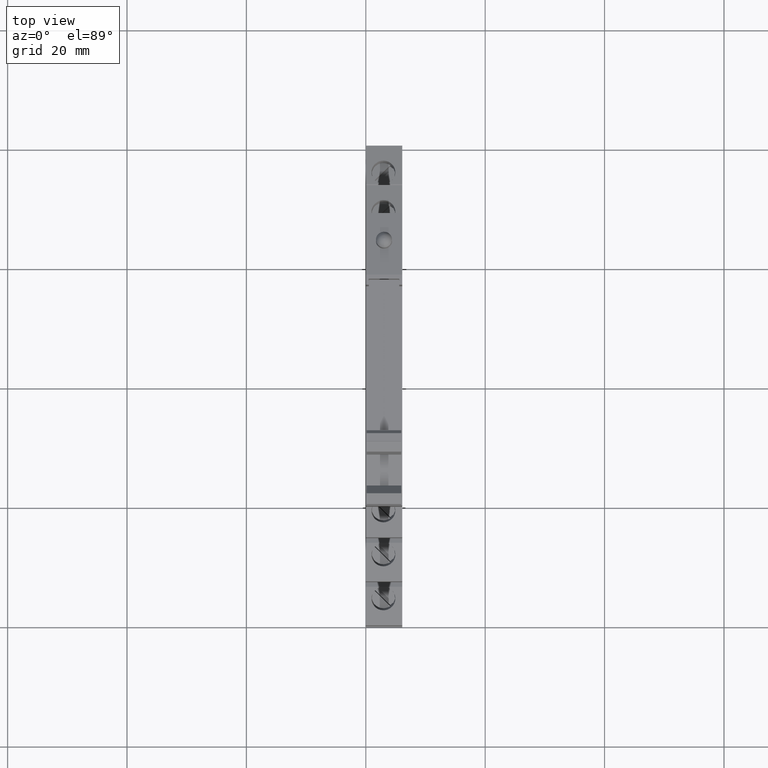
[diagram: clean part render]
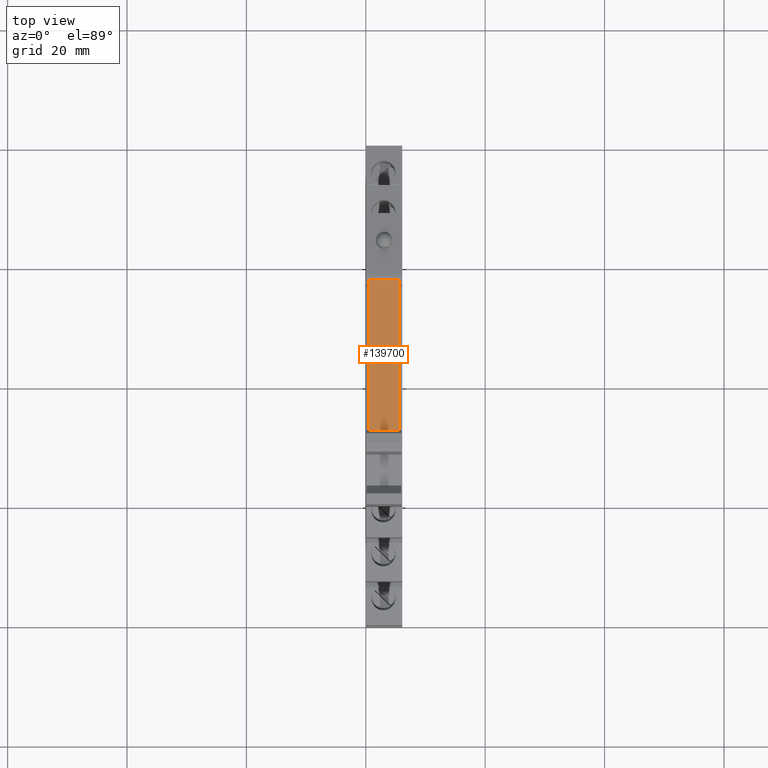
[diagram: same view with one face highlighted and labeled with its STEP entity id]
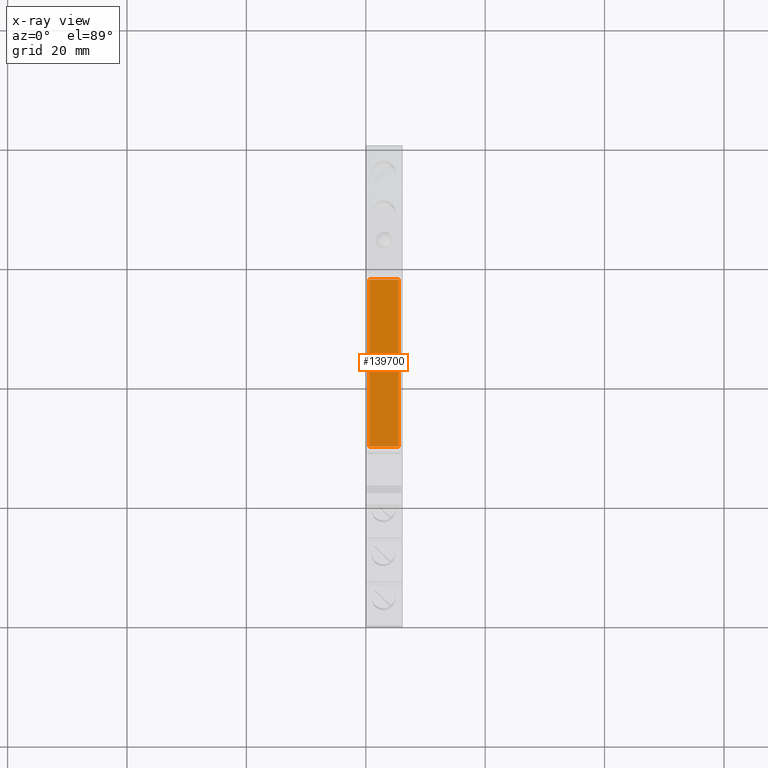
[diagram: x-ray of the same camera — body ghosted, the highlighted face saturated]
A machine part, top view. The second image highlights one B-rep face of the part: STEP entity #139700.
The next image is the same camera in x-ray: the body ghosted, the highlighted face saturated — about 0% of this face is hidden behind the body in this view.
In plain terms, the highlighted planar face has unit normal (0, 0, 1).
Its self-contained STEP definition (entity closure, byte-faithful):
#139310=CARTESIAN_POINT('',(28.0999999999999,-2.5,-15.));
#139320=DIRECTION('',(-4.67566793217254E-17,2.18618706119466E-33,-1.));
#139330=DIRECTION('',(-1.,4.67566793217254E-17,4.67566793217254E-17));
#139340=AXIS2_PLACEMENT_3D('',#139310,#139320,#139330);
#139350=PLANE('',#139340);
#139360=CARTESIAN_POINT('',(0.,-5.,-15.));
#139370=DIRECTION('',(-1.,0.,0.));
#139380=VECTOR('',#139370,1.);
#139390=LINE('',#139360,#139380);
#139400=CARTESIAN_POINT('',(28.1,-5.,-15.));
#139410=VERTEX_POINT('',#139400);
#139420=CARTESIAN_POINT('',(0.10000000000003,-5.,-15.));
#139430=VERTEX_POINT('',#139420);
#139440=EDGE_CURVE('',#139410,#139430,#139390,.T.);
#139450=ORIENTED_EDGE('',*,*,#139440,.T.);
#139460=CARTESIAN_POINT('',(28.1,0.,-15.));
#139470=DIRECTION('',(0.,-1.,0.));
#139480=VECTOR('',#139470,1.);
#139490=LINE('',#139460,#139480);
#139500=CARTESIAN_POINT('',(28.1,0.,-15.));
#139510=VERTEX_POINT('',#139500);
#139520=EDGE_CURVE('',#139510,#139410,#139490,.T.);
#139530=ORIENTED_EDGE('',*,*,#139520,.T.);
#139540=CARTESIAN_POINT('',(0.,0.,-15.));
#139550=DIRECTION('',(1.,0.,0.));
#139560=VECTOR('',#139550,1.);
#139570=LINE('',#139540,#139560);
#139580=CARTESIAN_POINT('',(0.10000000000003,0.,-15.));
#139590=VERTEX_POINT('',#139580);
#139600=EDGE_CURVE('',#139590,#139510,#139570,.T.);
#139610=ORIENTED_EDGE('',*,*,#139600,.T.);
#139620=CARTESIAN_POINT('',(0.10000000000003,0.,-15.));
#139630=DIRECTION('',(-4.67566793217254E-17,-1.,0.));
#139640=VECTOR('',#139630,1.);
#139650=LINE('',#139620,#139640);
#139660=EDGE_CURVE('',#139590,#139430,#139650,.T.);
#139670=ORIENTED_EDGE('',*,*,#139660,.F.);
#139680=EDGE_LOOP('',(#139670,#139610,#139530,#139450));
#139690=FACE_OUTER_BOUND('',#139680,.T.);
#139700=ADVANCED_FACE('',(#139690),#139350,.T.);